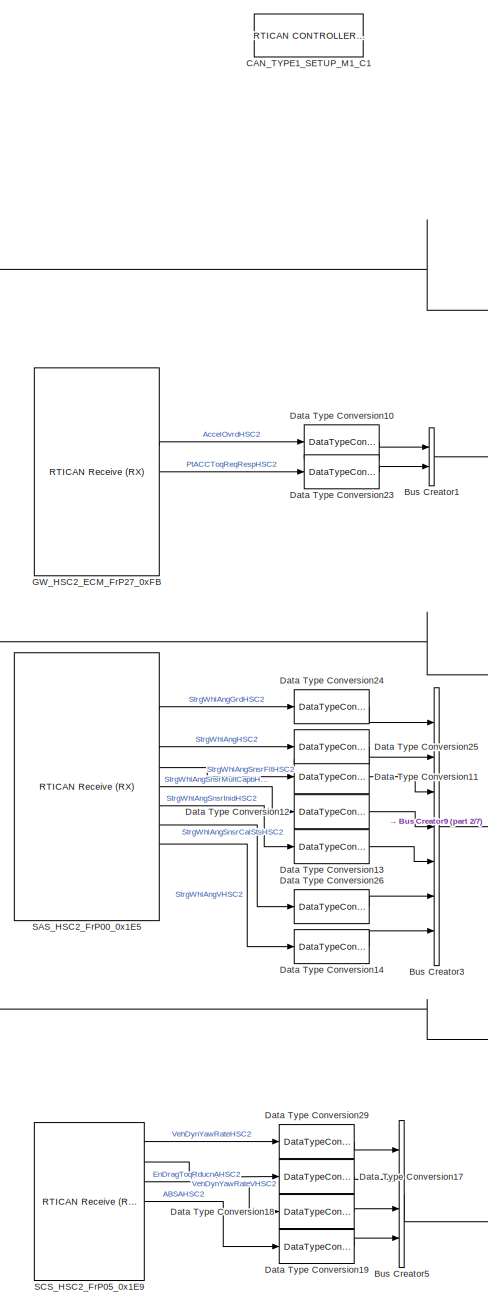
[diagram: root canvas - part 1/7, top center region]
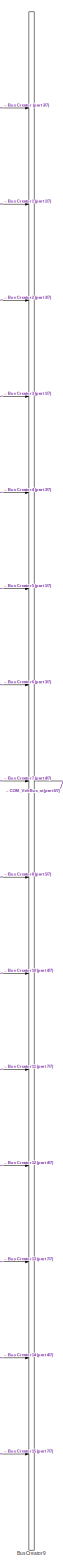
[diagram: root canvas - part 2/7, right side, full height]
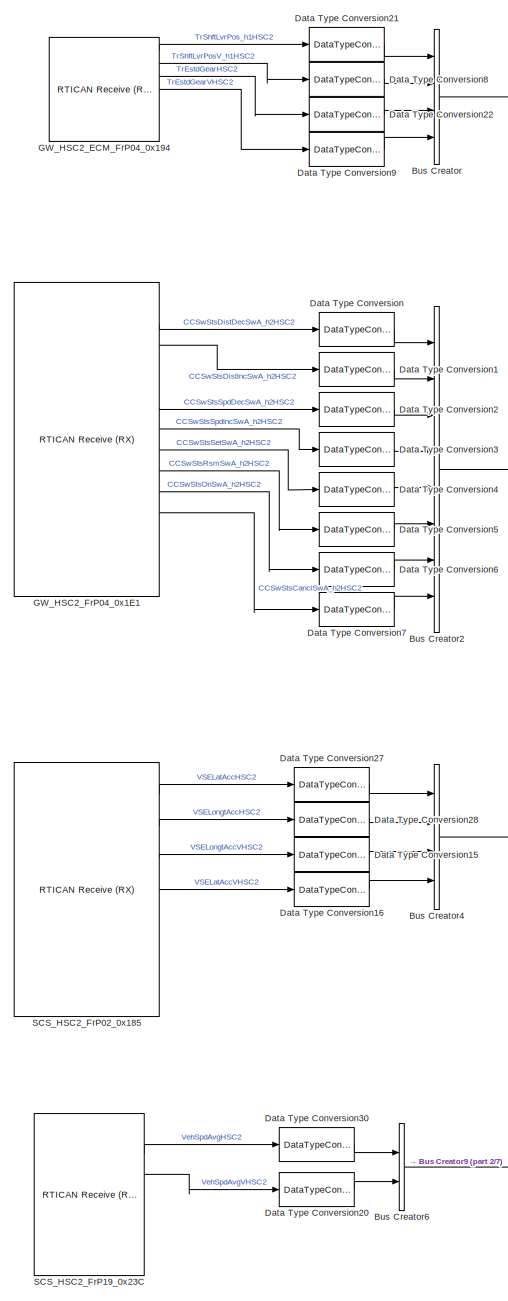
[diagram: root canvas - part 3/7, top left region]
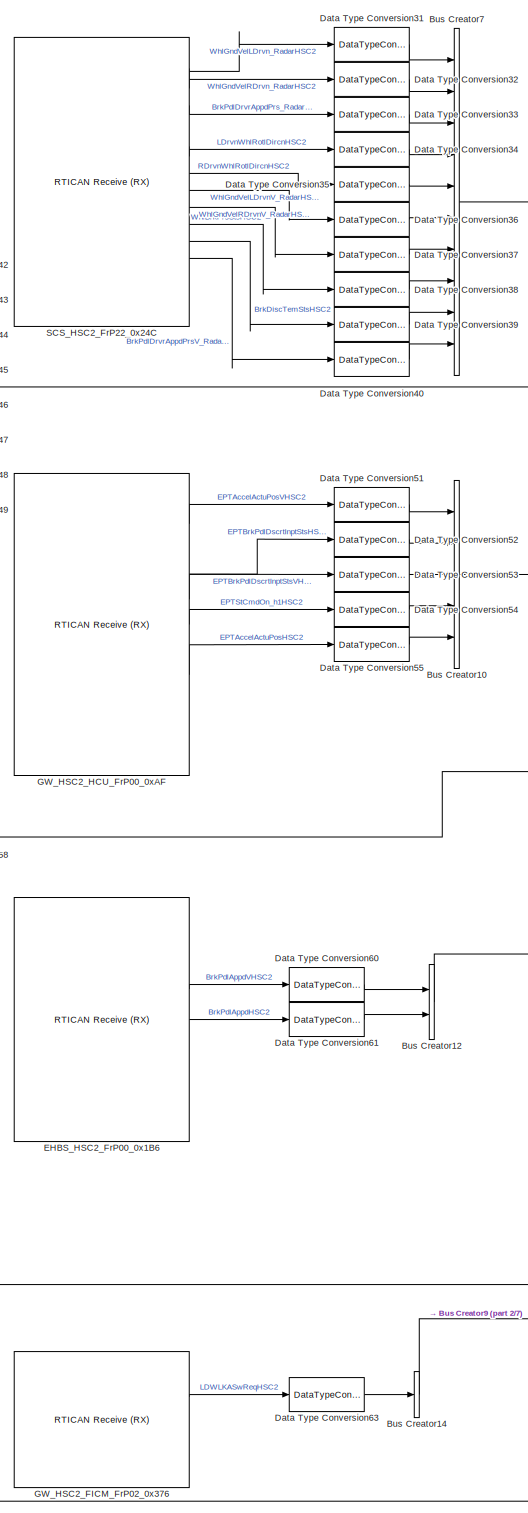
[diagram: root canvas - part 4/7, central region]
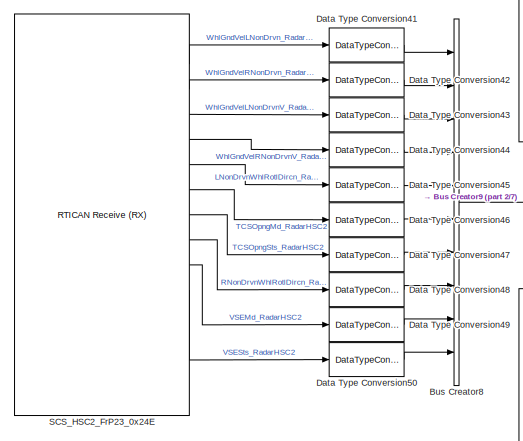
[diagram: root canvas - part 5/7, middle left region]
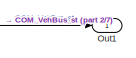
[diagram: root canvas - part 6/7, middle right region]
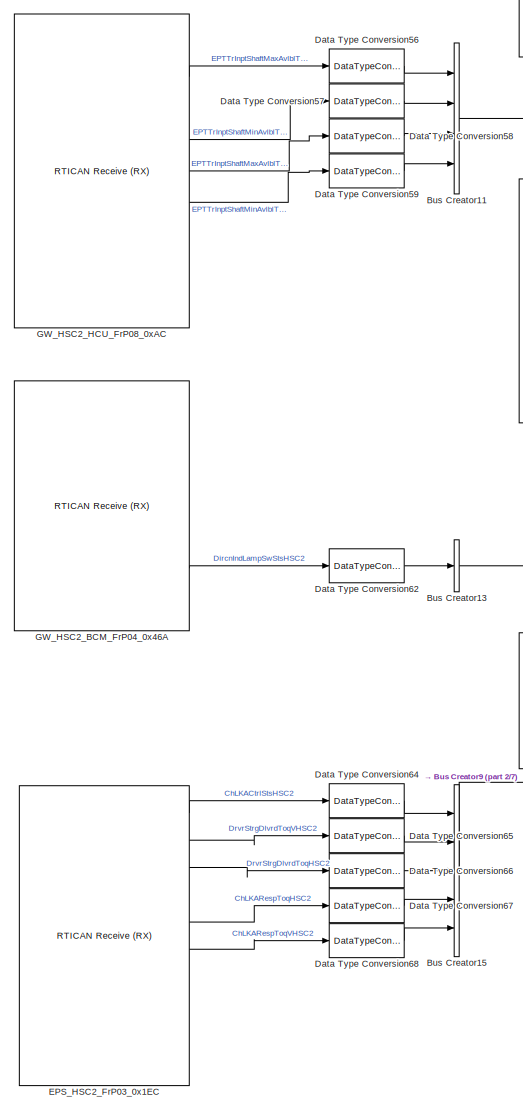
[diagram: root canvas - part 7/7, bottom left region]
MODEL slx_ac58596d1fab
KIND model
CONFIG AbsTol = auto
CONFIG EnableMultiTasking = off
CONFIG FixedStep = 0.005
CONFIG MaxStep = auto
CONFIG MinStep = auto
CONFIG PostLoadFcn = , if any(exist('dsrtsu_mdlpostloadfcn', 'file') ~= 0), dsrtsu_mdlpostloadfcn('Execute', bdroot); end, \n
CONFIG RelTol = 1e-3
CONFIG SampleTimeConstraint = Unconstrained
CONFIG Solver = FixedStepDiscrete
CONFIG SolverName = FixedStepDiscrete
CONFIG StartTime = 0.0
CONFIG StopTime = 10
BLOCK [BusCreator] Bus Creator
  DisplayOption = bar
  InheritFromInputs = off
  Inputs = 4
  NonVirtualBus = on
  OutDataTypeStr = Bus: x194
  Ports = [4, 1]
BLOCK [BusCreator] Bus Creator1
  DisplayOption = bar
  InheritFromInputs = off
  Inputs = 2
  NonVirtualBus = on
  OutDataTypeStr = Bus: xFB
  Ports = [2, 1]
BLOCK [BusCreator] Bus Creator10
  DisplayOption = bar
  InheritFromInputs = off
  Inputs = 5
  NonVirtualBus = on
  OutDataTypeStr = Bus: xAF
  Ports = [5, 1]
BLOCK [BusCreator] Bus Creator11
  DisplayOption = bar
  InheritFromInputs = off
  Inputs = 4
  NonVirtualBus = on
  OutDataTypeStr = Bus: xAC
  Ports = [4, 1]
BLOCK [BusCreator] Bus Creator12
  DisplayOption = bar
  InheritFromInputs = off
  Inputs = 2
  NonVirtualBus = on
  OutDataTypeStr = Bus: x1B6
  Ports = [2, 1]
BLOCK [BusCreator] Bus Creator13
  DisplayOption = bar
  InheritFromInputs = off
  Inputs = 1
  NonVirtualBus = on
  OutDataTypeStr = Bus: x46A
  Ports = [1, 1]
BLOCK [BusCreator] Bus Creator14
  DisplayOption = bar
  InheritFromInputs = off
  Inputs = 1
  NonVirtualBus = on
  OutDataTypeStr = Bus: x376
  Ports = [1, 1]
BLOCK [BusCreator] Bus Creator15
  DisplayOption = bar
  InheritFromInputs = off
  Inputs = 5
  NonVirtualBus = on
  OutDataTypeStr = Bus: x1EC
  Ports = [5, 1]
BLOCK [BusCreator] Bus Creator2
  DisplayOption = bar
  InheritFromInputs = off
  Inputs = 8
  NonVirtualBus = on
  OutDataTypeStr = Bus: x1E1
  Ports = [8, 1]
BLOCK [BusCreator] Bus Creator3
  DisplayOption = bar
  InheritFromInputs = off
  Inputs = 7
  NonVirtualBus = on
  OutDataTypeStr = Bus: x1E5
  Ports = [7, 1]
BLOCK [BusCreator] Bus Creator4
  DisplayOption = bar
  InheritFromInputs = off
  Inputs = 4
  NonVirtualBus = on
  OutDataTypeStr = Bus: x185
  Ports = [4, 1]
BLOCK [BusCreator] Bus Creator5
  DisplayOption = bar
  InheritFromInputs = off
  Inputs = 4
  NonVirtualBus = on
  OutDataTypeStr = Bus: x1E9
  Ports = [4, 1]
BLOCK [BusCreator] Bus Creator6
  DisplayOption = bar
  InheritFromInputs = off
  Inputs = 2
  NonVirtualBus = on
  OutDataTypeStr = Bus: x23C
  Ports = [2, 1]
BLOCK [BusCreator] Bus Creator7
  DisplayOption = bar
  InheritFromInputs = off
  Inputs = 10
  NonVirtualBus = on
  OutDataTypeStr = Bus: x24C
  Ports = [10, 1]
BLOCK [BusCreator] Bus Creator8
  DisplayOption = bar
  InheritFromInputs = off
  Inputs = 10
  NonVirtualBus = on
  OutDataTypeStr = Bus: x24E
  Ports = [10, 1]
BLOCK [BusCreator] Bus Creator9
  DisplayOption = bar
  InheritFromInputs = off
  Inputs = 15
  NonVirtualBus = on
  OutDataTypeStr = Bus: COM_VEHBUS_ST
  Ports = [15, 1]
BLOCK [Reference] CAN_TYPE1_SETUP_M1_C1  REF=rtican/RTICAN
CONTROLLER SETUP 
  AttributesFormatString = Group Id: RTICAN1\n
  Ports = []
  SourceBlock = rtican/RTICAN\nCONTROLLER SETUP
  SourceProductName = dSPACE RTI CAN Blockset
  SourceType = RTI
BLOCK [DataTypeConversion] Data Type Conversion
  OutDataTypeStr = boolean
  RndMeth = Floor
  SaturateOnIntegerOverflow = off
BLOCK [DataTypeConversion] Data Type Conversion1
  OutDataTypeStr = boolean
  RndMeth = Floor
  SaturateOnIntegerOverflow = off
BLOCK [DataTypeConversion] Data Type Conversion10
  OutDataTypeStr = boolean
  RndMeth = Floor
  SaturateOnIntegerOverflow = off
BLOCK [DataTypeConversion] Data Type Conversion11
  OutDataTypeStr = boolean
  RndMeth = Floor
  SaturateOnIntegerOverflow = off
BLOCK [DataTypeConversion] Data Type Conversion12
  OutDataTypeStr = boolean
  RndMeth = Floor
  SaturateOnIntegerOverflow = off
BLOCK [DataTypeConversion] Data Type Conversion13
  OutDataTypeStr = boolean
  RndMeth = Floor
  SaturateOnIntegerOverflow = off
BLOCK [DataTypeConversion] Data Type Conversion14
  OutDataTypeStr = boolean
  RndMeth = Floor
  SaturateOnIntegerOverflow = off
BLOCK [DataTypeConversion] Data Type Conversion15
  OutDataTypeStr = boolean
  RndMeth = Floor
  SaturateOnIntegerOverflow = off
BLOCK [DataTypeConversion] Data Type Conversion16
  OutDataTypeStr = boolean
  RndMeth = Floor
  SaturateOnIntegerOverflow = off
BLOCK [DataTypeConversion] Data Type Conversion17
  OutDataTypeStr = boolean
  RndMeth = Floor
  SaturateOnIntegerOverflow = off
BLOCK [DataTypeConversion] Data Type Conversion18
  OutDataTypeStr = boolean
  RndMeth = Floor
  SaturateOnIntegerOverflow = off
BLOCK [DataTypeConversion] Data Type Conversion19
  OutDataTypeStr = boolean
  RndMeth = Floor
  SaturateOnIntegerOverflow = off
BLOCK [DataTypeConversion] Data Type Conversion2
  OutDataTypeStr = boolean
  RndMeth = Floor
  SaturateOnIntegerOverflow = off
BLOCK [DataTypeConversion] Data Type Conversion20
  OutDataTypeStr = boolean
  RndMeth = Floor
  SaturateOnIntegerOverflow = off
BLOCK [DataTypeConversion] Data Type Conversion21
  OutDataTypeStr = single
  RndMeth = Floor
  SaturateOnIntegerOverflow = off
BLOCK [DataTypeConversion] Data Type Conversion22
  OutDataTypeStr = single
  RndMeth = Floor
  SaturateOnIntegerOverflow = off
BLOCK [DataTypeConversion] Data Type Conversion23
  OutDataTypeStr = single
  RndMeth = Floor
  SaturateOnIntegerOverflow = off
BLOCK [DataTypeConversion] Data Type Conversion24
  OutDataTypeStr = single
  RndMeth = Floor
  SaturateOnIntegerOverflow = off
BLOCK [DataTypeConversion] Data Type Conversion25
  OutDataTypeStr = single
  RndMeth = Floor
  SaturateOnIntegerOverflow = off
BLOCK [DataTypeConversion] Data Type Conversion26
  OutDataTypeStr = single
  RndMeth = Floor
  SaturateOnIntegerOverflow = off
BLOCK [DataTypeConversion] Data Type Conversion27
  OutDataTypeStr = single
  RndMeth = Floor
  SaturateOnIntegerOverflow = off
BLOCK [DataTypeConversion] Data Type Conversion28
  OutDataTypeStr = single
  RndMeth = Floor
  SaturateOnIntegerOverflow = off
BLOCK [DataTypeConversion] Data Type Conversion29
  OutDataTypeStr = single
  RndMeth = Floor
  SaturateOnIntegerOverflow = off
BLOCK [DataTypeConversion] Data Type Conversion3
  OutDataTypeStr = boolean
  RndMeth = Floor
  SaturateOnIntegerOverflow = off
BLOCK [DataTypeConversion] Data Type Conversion30
  OutDataTypeStr = single
  RndMeth = Floor
  SaturateOnIntegerOverflow = off
BLOCK [DataTypeConversion] Data Type Conversion31
  OutDataTypeStr = single
  RndMeth = Floor
  SaturateOnIntegerOverflow = off
BLOCK [DataTypeConversion] Data Type Conversion32
  OutDataTypeStr = single
  RndMeth = Floor
  SaturateOnIntegerOverflow = off
BLOCK [DataTypeConversion] Data Type Conversion33
  OutDataTypeStr = single
  RndMeth = Floor
  SaturateOnIntegerOverflow = off
BLOCK [DataTypeConversion] Data Type Conversion34
  OutDataTypeStr = single
  RndMeth = Floor
  SaturateOnIntegerOverflow = off
BLOCK [DataTypeConversion] Data Type Conversion35
  OutDataTypeStr = single
  RndMeth = Floor
  SaturateOnIntegerOverflow = off
BLOCK [DataTypeConversion] Data Type Conversion36
  OutDataTypeStr = boolean
  RndMeth = Floor
  SaturateOnIntegerOverflow = off
BLOCK [DataTypeConversion] Data Type Conversion37
  OutDataTypeStr = boolean
  RndMeth = Floor
  SaturateOnIntegerOverflow = off
BLOCK [DataTypeConversion] Data Type Conversion38
  OutDataTypeStr = boolean
  RndMeth = Floor
  SaturateOnIntegerOverflow = off
BLOCK [DataTypeConversion] Data Type Conversion39
  OutDataTypeStr = boolean
  RndMeth = Floor
  SaturateOnIntegerOverflow = off
BLOCK [DataTypeConversion] Data Type Conversion4
  OutDataTypeStr = boolean
  RndMeth = Floor
  SaturateOnIntegerOverflow = off
BLOCK [DataTypeConversion] Data Type Conversion40
  OutDataTypeStr = boolean
  RndMeth = Floor
  SaturateOnIntegerOverflow = off
BLOCK [DataTypeConversion] Data Type Conversion41
  OutDataTypeStr = single
  RndMeth = Floor
  SaturateOnIntegerOverflow = off
BLOCK [DataTypeConversion] Data Type Conversion42
  OutDataTypeStr = single
  RndMeth = Floor
  SaturateOnIntegerOverflow = off
BLOCK [DataTypeConversion] Data Type Conversion43
  OutDataTypeStr = boolean
  RndMeth = Floor
  SaturateOnIntegerOverflow = off
BLOCK [DataTypeConversion] Data Type Conversion44
  OutDataTypeStr = boolean
  RndMeth = Floor
  SaturateOnIntegerOverflow = off
BLOCK [DataTypeConversion] Data Type Conversion45
  OutDataTypeStr = single
  RndMeth = Floor
  SaturateOnIntegerOverflow = off
BLOCK [DataTypeConversion] Data Type Conversion46
  OutDataTypeStr = single
  RndMeth = Floor
  SaturateOnIntegerOverflow = off
BLOCK [DataTypeConversion] Data Type Conversion47
  OutDataTypeStr = single
  RndMeth = Floor
  SaturateOnIntegerOverflow = off
BLOCK [DataTypeConversion] Data Type Conversion48
  OutDataTypeStr = single
  RndMeth = Floor
  SaturateOnIntegerOverflow = off
BLOCK [DataTypeConversion] Data Type Conversion49
  OutDataTypeStr = single
  RndMeth = Floor
  SaturateOnIntegerOverflow = off
BLOCK [DataTypeConversion] Data Type Conversion5
  OutDataTypeStr = boolean
  RndMeth = Floor
  SaturateOnIntegerOverflow = off
BLOCK [DataTypeConversion] Data Type Conversion50
  OutDataTypeStr = single
  RndMeth = Floor
  SaturateOnIntegerOverflow = off
BLOCK [DataTypeConversion] Data Type Conversion51
  OutDataTypeStr = boolean
  RndMeth = Floor
  SaturateOnIntegerOverflow = off
BLOCK [DataTypeConversion] Data Type Conversion52
  OutDataTypeStr = boolean
  RndMeth = Floor
  SaturateOnIntegerOverflow = off
BLOCK [DataTypeConversion] Data Type Conversion53
  OutDataTypeStr = boolean
  RndMeth = Floor
  SaturateOnIntegerOverflow = off
BLOCK [DataTypeConversion] Data Type Conversion54
  OutDataTypeStr = boolean
  RndMeth = Floor
  SaturateOnIntegerOverflow = off
BLOCK [DataTypeConversion] Data Type Conversion55
  OutDataTypeStr = single
  RndMeth = Floor
  SaturateOnIntegerOverflow = off
BLOCK [DataTypeConversion] Data Type Conversion56
  OutDataTypeStr = single
  RndMeth = Floor
  SaturateOnIntegerOverflow = off
BLOCK [DataTypeConversion] Data Type Conversion57
  OutDataTypeStr = single
  RndMeth = Floor
  SaturateOnIntegerOverflow = off
BLOCK [DataTypeConversion] Data Type Conversion58
  OutDataTypeStr = boolean
  RndMeth = Floor
  SaturateOnIntegerOverflow = off
BLOCK [DataTypeConversion] Data Type Conversion59
  OutDataTypeStr = boolean
  RndMeth = Floor
  SaturateOnIntegerOverflow = off
BLOCK [DataTypeConversion] Data Type Conversion6
  OutDataTypeStr = boolean
  RndMeth = Floor
  SaturateOnIntegerOverflow = off
BLOCK [DataTypeConversion] Data Type Conversion60
  OutDataTypeStr = single
  RndMeth = Floor
  SaturateOnIntegerOverflow = off
BLOCK [DataTypeConversion] Data Type Conversion61
  OutDataTypeStr = boolean
  RndMeth = Floor
  SaturateOnIntegerOverflow = off
BLOCK [DataTypeConversion] Data Type Conversion62
  OutDataTypeStr = single
  RndMeth = Floor
  SaturateOnIntegerOverflow = off
BLOCK [DataTypeConversion] Data Type Conversion63
  OutDataTypeStr = single
  RndMeth = Floor
  SaturateOnIntegerOverflow = off
BLOCK [DataTypeConversion] Data Type Conversion64
  OutDataTypeStr = single
  RndMeth = Floor
  SaturateOnIntegerOverflow = off
BLOCK [DataTypeConversion] Data Type Conversion65
  OutDataTypeStr = boolean
  RndMeth = Floor
  SaturateOnIntegerOverflow = off
BLOCK [DataTypeConversion] Data Type Conversion66
  OutDataTypeStr = single
  RndMeth = Floor
  SaturateOnIntegerOverflow = off
BLOCK [DataTypeConversion] Data Type Conversion67
  OutDataTypeStr = single
  RndMeth = Floor
  SaturateOnIntegerOverflow = off
BLOCK [DataTypeConversion] Data Type Conversion68
  OutDataTypeStr = boolean
  RndMeth = Floor
  SaturateOnIntegerOverflow = off
BLOCK [DataTypeConversion] Data Type Conversion7
  OutDataTypeStr = boolean
  RndMeth = Floor
  SaturateOnIntegerOverflow = off
BLOCK [DataTypeConversion] Data Type Conversion8
  OutDataTypeStr = boolean
  RndMeth = Floor
  SaturateOnIntegerOverflow = off
BLOCK [DataTypeConversion] Data Type Conversion9
  OutDataTypeStr = boolean
  RndMeth = Floor
  SaturateOnIntegerOverflow = off
BLOCK [Reference] EHBS_HSC2_FrP00_0x1B6  REF=rtican/RTICAN
Receive (RX) 
  AttributesFormatString = Group Id: RTICAN1\n
  Ports = [0, 7]
  SourceBlock = rtican/RTICAN\nReceive (RX)
  SourceProductName = dSPACE RTI CAN Blockset
  SourceType = RTI
BLOCK [Reference] EPS_HSC2_FrP03_0x1EC  REF=rtican/RTICAN
Receive (RX) 
  AttributesFormatString = Group Id: RTICAN1\n
  Ports = [0, 10]
  SourceBlock = rtican/RTICAN\nReceive (RX)
  SourceProductName = dSPACE RTI CAN Blockset
  SourceType = RTI
BLOCK [Reference] GW_HSC2_BCM_FrP04_0x46A  REF=rtican/RTICAN
Receive (RX) 
  AttributesFormatString = Group Id: RTICAN1\n
  Ports = [0, 23]
  SourceBlock = rtican/RTICAN\nReceive (RX)
  SourceProductName = dSPACE RTI CAN Blockset
  SourceType = RTI
BLOCK [Reference] GW_HSC2_ECM_FrP04_0x194  REF=rtican/RTICAN
Receive (RX) 
  AttributesFormatString = Group Id: RTICAN1\n
  Ports = [0, 7]
  SourceBlock = rtican/RTICAN\nReceive (RX)
  SourceProductName = dSPACE RTI CAN Blockset
  SourceType = RTI
BLOCK [Reference] GW_HSC2_ECM_FrP27_0xFB  REF=rtican/RTICAN
Receive (RX) 
  AttributesFormatString = Group Id: RTICAN1\n
  Ports = [0, 7]
  SourceBlock = rtican/RTICAN\nReceive (RX)
  SourceProductName = dSPACE RTI CAN Blockset
  SourceType = RTI
BLOCK [Reference] GW_HSC2_FICM_FrP02_0x376  REF=rtican/RTICAN
Receive (RX) 
  AttributesFormatString = Group Id: RTICAN1\n
  Ports = [0, 5]
  SourceBlock = rtican/RTICAN\nReceive (RX)
  SourceProductName = dSPACE RTI CAN Blockset
  SourceType = RTI
BLOCK [Reference] GW_HSC2_FrP04_0x1E1  REF=rtican/RTICAN
Receive (RX) 
  AttributesFormatString = Group Id: RTICAN1\n
  Ports = [0, 14]
  SourceBlock = rtican/RTICAN\nReceive (RX)
  SourceProductName = dSPACE RTI CAN Blockset
  SourceType = RTI
BLOCK [Reference] GW_HSC2_HCU_FrP00_0xAF  REF=rtican/RTICAN
Receive (RX) 
  AttributesFormatString = Group Id: RTICAN1\n
  Ports = [0, 11]
  SourceBlock = rtican/RTICAN\nReceive (RX)
  SourceProductName = dSPACE RTI CAN Blockset
  SourceType = RTI
BLOCK [Reference] GW_HSC2_HCU_FrP08_0xAC  REF=rtican/RTICAN
Receive (RX) 
  AttributesFormatString = Group Id: RTICAN1\n
  Ports = [0, 9]
  SourceBlock = rtican/RTICAN\nReceive (RX)
  SourceProductName = dSPACE RTI CAN Blockset
  SourceType = RTI
BLOCK [Outport] Out1
  BusOutputAsStruct = on
  IconDisplay = Port number
  OutDataTypeStr = Bus: COM_VEHBUS_ST
BLOCK [Reference] SAS_HSC2_FrP00_0x1E5  REF=rtican/RTICAN
Receive (RX) 
  AttributesFormatString = Group Id: RTICAN1\n
  Ports = [0, 13]
  SourceBlock = rtican/RTICAN\nReceive (RX)
  SourceProductName = dSPACE RTI CAN Blockset
  SourceType = RTI
BLOCK [Reference] SCS_HSC2_FrP02_0x185  REF=rtican/RTICAN
Receive (RX) 
  AttributesFormatString = Group Id: RTICAN1\n
  Ports = [0, 7]
  SourceBlock = rtican/RTICAN\nReceive (RX)
  SourceProductName = dSPACE RTI CAN Blockset
  SourceType = RTI
BLOCK [Reference] SCS_HSC2_FrP05_0x1E9  REF=rtican/RTICAN
Receive (RX) 
  AttributesFormatString = Group Id: RTICAN1\n
  Ports = [0, 7]
  SourceBlock = rtican/RTICAN\nReceive (RX)
  SourceProductName = dSPACE RTI CAN Blockset
  SourceType = RTI
BLOCK [Reference] SCS_HSC2_FrP19_0x23C  REF=rtican/RTICAN
Receive (RX) 
  AttributesFormatString = Group Id: RTICAN1\n
  Ports = [0, 7]
  SourceBlock = rtican/RTICAN\nReceive (RX)
  SourceProductName = dSPACE RTI CAN Blockset
  SourceType = RTI
BLOCK [Reference] SCS_HSC2_FrP22_0x24C  REF=rtican/RTICAN
Receive (RX) 
  AttributesFormatString = Group Id: RTICAN1\n
  Ports = [0, 16]
  SourceBlock = rtican/RTICAN\nReceive (RX)
  SourceProductName = dSPACE RTI CAN Blockset
  SourceType = RTI
BLOCK [Reference] SCS_HSC2_FrP23_0x24E  REF=rtican/RTICAN
Receive (RX) 
  AttributesFormatString = Group Id: RTICAN1\n
  Ports = [0, 15]
  SourceBlock = rtican/RTICAN\nReceive (RX)
  SourceProductName = dSPACE RTI CAN Blockset
  SourceType = RTI
LINE Bus Creator10:1 -> Bus Creator9:10
LINE Bus Creator11:1 -> Bus Creator9:11
LINE Bus Creator12:1 -> Bus Creator9:12
LINE Bus Creator13:1 -> Bus Creator9:13
LINE Bus Creator14:1 -> Bus Creator9:14
LINE Bus Creator15:1 -> Bus Creator9:15
LINE Bus Creator1:1 -> Bus Creator9:2
LINE Bus Creator2:1 -> Bus Creator9:3
LINE Bus Creator3:1 -> Bus Creator9:4
LINE Bus Creator4:1 -> Bus Creator9:5
LINE Bus Creator5:1 -> Bus Creator9:6
LINE Bus Creator6:1 -> Bus Creator9:7
LINE Bus Creator7:1 -> Bus Creator9:8
LINE Bus Creator8:1 -> Bus Creator9:9
LINE Bus Creator9:1 -> Out1:1
LINE Bus Creator:1 -> Bus Creator9:1
LINE Data Type Conversion10:1 -> Bus Creator1:1
LINE Data Type Conversion11:1 -> Bus Creator3:3
LINE Data Type Conversion12:1 -> Bus Creator3:4
LINE Data Type Conversion13:1 -> Bus Creator3:5
LINE Data Type Conversion14:1 -> Bus Creator3:7
LINE Data Type Conversion15:1 -> Bus Creator4:3
LINE Data Type Conversion16:1 -> Bus Creator4:4
LINE Data Type Conversion17:1 -> Bus Creator5:2
LINE Data Type Conversion18:1 -> Bus Creator5:3
LINE Data Type Conversion19:1 -> Bus Creator5:4
LINE Data Type Conversion1:1 -> Bus Creator2:2
LINE Data Type Conversion20:1 -> Bus Creator6:2
LINE Data Type Conversion21:1 -> Bus Creator:1
LINE Data Type Conversion22:1 -> Bus Creator:3
LINE Data Type Conversion23:1 -> Bus Creator1:2
LINE Data Type Conversion24:1 -> Bus Creator3:1
LINE Data Type Conversion25:1 -> Bus Creator3:2
LINE Data Type Conversion26:1 -> Bus Creator3:6
LINE Data Type Conversion27:1 -> Bus Creator4:1
LINE Data Type Conversion28:1 -> Bus Creator4:2
LINE Data Type Conversion29:1 -> Bus Creator5:1
LINE Data Type Conversion2:1 -> Bus Creator2:3
LINE Data Type Conversion30:1 -> Bus Creator6:1
LINE Data Type Conversion31:1 -> Bus Creator7:1
LINE Data Type Conversion32:1 -> Bus Creator7:2
LINE Data Type Conversion33:1 -> Bus Creator7:3
LINE Data Type Conversion34:1 -> Bus Creator7:4
LINE Data Type Conversion35:1 -> Bus Creator7:5
LINE Data Type Conversion36:1 -> Bus Creator7:6
LINE Data Type Conversion37:1 -> Bus Creator7:7
LINE Data Type Conversion38:1 -> Bus Creator7:8
LINE Data Type Conversion39:1 -> Bus Creator7:9
LINE Data Type Conversion3:1 -> Bus Creator2:4
LINE Data Type Conversion40:1 -> Bus Creator7:10
LINE Data Type Conversion41:1 -> Bus Creator8:1
LINE Data Type Conversion42:1 -> Bus Creator8:2
LINE Data Type Conversion43:1 -> Bus Creator8:3
LINE Data Type Conversion44:1 -> Bus Creator8:4
LINE Data Type Conversion45:1 -> Bus Creator8:5
LINE Data Type Conversion46:1 -> Bus Creator8:6
LINE Data Type Conversion47:1 -> Bus Creator8:7
LINE Data Type Conversion48:1 -> Bus Creator8:8
LINE Data Type Conversion49:1 -> Bus Creator8:9
LINE Data Type Conversion4:1 -> Bus Creator2:5
LINE Data Type Conversion50:1 -> Bus Creator8:10
LINE Data Type Conversion51:1 -> Bus Creator10:1
LINE Data Type Conversion52:1 -> Bus Creator10:2
LINE Data Type Conversion53:1 -> Bus Creator10:3
LINE Data Type Conversion54:1 -> Bus Creator10:4
LINE Data Type Conversion55:1 -> Bus Creator10:5
LINE Data Type Conversion56:1 -> Bus Creator11:1
LINE Data Type Conversion57:1 -> Bus Creator11:2
LINE Data Type Conversion58:1 -> Bus Creator11:3
LINE Data Type Conversion59:1 -> Bus Creator11:4
LINE Data Type Conversion5:1 -> Bus Creator2:6
LINE Data Type Conversion60:1 -> Bus Creator12:1
LINE Data Type Conversion61:1 -> Bus Creator12:2
LINE Data Type Conversion62:1 -> Bus Creator13:1
LINE Data Type Conversion63:1 -> Bus Creator14:1
LINE Data Type Conversion64:1 -> Bus Creator15:1
LINE Data Type Conversion65:1 -> Bus Creator15:2
LINE Data Type Conversion66:1 -> Bus Creator15:3
LINE Data Type Conversion67:1 -> Bus Creator15:4
LINE Data Type Conversion68:1 -> Bus Creator15:5
LINE Data Type Conversion6:1 -> Bus Creator2:7
LINE Data Type Conversion7:1 -> Bus Creator2:8
LINE Data Type Conversion8:1 -> Bus Creator:2
LINE Data Type Conversion9:1 -> Bus Creator:4
LINE Data Type Conversion:1 -> Bus Creator2:1
LINE EHBS_HSC2_FrP00_0x1B6:3 -> Data Type Conversion60:1
LINE EHBS_HSC2_FrP00_0x1B6:4 -> Data Type Conversion61:1
LINE EPS_HSC2_FrP03_0x1EC:1 -> Data Type Conversion64:1
LINE EPS_HSC2_FrP03_0x1EC:2 -> Data Type Conversion65:1
LINE EPS_HSC2_FrP03_0x1EC:3 -> Data Type Conversion66:1
LINE EPS_HSC2_FrP03_0x1EC:5 -> Data Type Conversion67:1
LINE EPS_HSC2_FrP03_0x1EC:6 -> Data Type Conversion68:1
LINE GW_HSC2_BCM_FrP04_0x46A:18 -> Data Type Conversion62:1
LINE GW_HSC2_ECM_FrP04_0x194:1 -> Data Type Conversion21:1
LINE GW_HSC2_ECM_FrP04_0x194:2 -> Data Type Conversion8:1
LINE GW_HSC2_ECM_FrP04_0x194:3 -> Data Type Conversion22:1
LINE GW_HSC2_ECM_FrP04_0x194:4 -> Data Type Conversion9:1
LINE GW_HSC2_ECM_FrP27_0xFB:3 -> Data Type Conversion10:1
LINE GW_HSC2_ECM_FrP27_0xFB:4 -> Data Type Conversion23:1
LINE GW_HSC2_FICM_FrP02_0x376:2 -> Data Type Conversion63:1
LINE GW_HSC2_FrP04_0x1E1:10 -> Data Type Conversion6:1
LINE GW_HSC2_FrP04_0x1E1:11 -> Data Type Conversion7:1
LINE GW_HSC2_FrP04_0x1E1:2 -> Data Type Conversion:1
LINE GW_HSC2_FrP04_0x1E1:3 -> Data Type Conversion1:1
LINE GW_HSC2_FrP04_0x1E1:6 -> Data Type Conversion2:1
LINE GW_HSC2_FrP04_0x1E1:7 -> Data Type Conversion3:1
LINE GW_HSC2_FrP04_0x1E1:8 -> Data Type Conversion4:1
LINE GW_HSC2_FrP04_0x1E1:9 -> Data Type Conversion5:1
LINE GW_HSC2_HCU_FrP00_0xAF:2 -> Data Type Conversion51:1
LINE GW_HSC2_HCU_FrP00_0xAF:4 -> Data Type Conversion52:1
LINE GW_HSC2_HCU_FrP00_0xAF:5 -> Data Type Conversion53:1
LINE GW_HSC2_HCU_FrP00_0xAF:6 -> Data Type Conversion54:1
LINE GW_HSC2_HCU_FrP00_0xAF:8 -> Data Type Conversion55:1
LINE GW_HSC2_HCU_FrP08_0xAC:2 -> Data Type Conversion56:1
LINE GW_HSC2_HCU_FrP08_0xAC:4 -> Data Type Conversion57:1
LINE GW_HSC2_HCU_FrP08_0xAC:5 -> Data Type Conversion58:1
LINE GW_HSC2_HCU_FrP08_0xAC:6 -> Data Type Conversion59:1
LINE SAS_HSC2_FrP00_0x1E5:10 -> Data Type Conversion14:1
LINE SAS_HSC2_FrP00_0x1E5:3 -> Data Type Conversion24:1
LINE SAS_HSC2_FrP00_0x1E5:5 -> Data Type Conversion25:1
LINE SAS_HSC2_FrP00_0x1E5:6 -> Data Type Conversion11:1
LINE SAS_HSC2_FrP00_0x1E5:7 -> Data Type Conversion12:1
LINE SAS_HSC2_FrP00_0x1E5:8 -> Data Type Conversion13:1
LINE SAS_HSC2_FrP00_0x1E5:9 -> Data Type Conversion26:1
LINE SCS_HSC2_FrP02_0x185:1 -> Data Type Conversion27:1
LINE SCS_HSC2_FrP02_0x185:2 -> Data Type Conversion28:1
LINE SCS_HSC2_FrP02_0x185:3 -> Data Type Conversion15:1
LINE SCS_HSC2_FrP02_0x185:4 -> Data Type Conversion16:1
LINE SCS_HSC2_FrP05_0x1E9:1 -> Data Type Conversion29:1
LINE SCS_HSC2_FrP05_0x1E9:2 -> Data Type Conversion17:1
LINE SCS_HSC2_FrP05_0x1E9:3 -> Data Type Conversion18:1
LINE SCS_HSC2_FrP05_0x1E9:4 -> Data Type Conversion19:1
LINE SCS_HSC2_FrP19_0x23C:2 -> Data Type Conversion30:1
LINE SCS_HSC2_FrP19_0x23C:3 -> Data Type Conversion20:1
LINE SCS_HSC2_FrP22_0x24C:10 -> Data Type Conversion37:1
LINE SCS_HSC2_FrP22_0x24C:11 -> Data Type Conversion38:1
LINE SCS_HSC2_FrP22_0x24C:12 -> Data Type Conversion39:1
LINE SCS_HSC2_FrP22_0x24C:13 -> Data Type Conversion40:1
LINE SCS_HSC2_FrP22_0x24C:2 -> Data Type Conversion31:1
LINE SCS_HSC2_FrP22_0x24C:3 -> Data Type Conversion32:1
LINE SCS_HSC2_FrP22_0x24C:4 -> Data Type Conversion33:1
LINE SCS_HSC2_FrP22_0x24C:7 -> Data Type Conversion34:1
LINE SCS_HSC2_FrP22_0x24C:8 -> Data Type Conversion35:1
LINE SCS_HSC2_FrP22_0x24C:9 -> Data Type Conversion36:1
LINE SCS_HSC2_FrP23_0x24E:10 -> Data Type Conversion49:1
LINE SCS_HSC2_FrP23_0x24E:11 -> Data Type Conversion50:1
LINE SCS_HSC2_FrP23_0x24E:2 -> Data Type Conversion41:1
LINE SCS_HSC2_FrP23_0x24E:3 -> Data Type Conversion42:1
LINE SCS_HSC2_FrP23_0x24E:4 -> Data Type Conversion43:1
LINE SCS_HSC2_FrP23_0x24E:5 -> Data Type Conversion44:1
LINE SCS_HSC2_FrP23_0x24E:6 -> Data Type Conversion45:1
LINE SCS_HSC2_FrP23_0x24E:7 -> Data Type Conversion46:1
LINE SCS_HSC2_FrP23_0x24E:8 -> Data Type Conversion47:1
LINE SCS_HSC2_FrP23_0x24E:9 -> Data Type Conversion48:1
